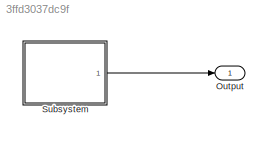
MODEL slx_3ffd3037dc9f
KIND model
CONFIG AbsTol = auto
CONFIG EnableMultiTasking = off
CONFIG FixedStep = 0.01
CONFIG MaxStep = auto
CONFIG MinStep = auto
CONFIG RelTol = 1e-3
CONFIG SampleTimeConstraint = Unconstrained
CONFIG SolverName = FixedStepAuto
CONFIG StartTime = 0.0
CONFIG StopTime = 15
BLOCK [Outport] Output
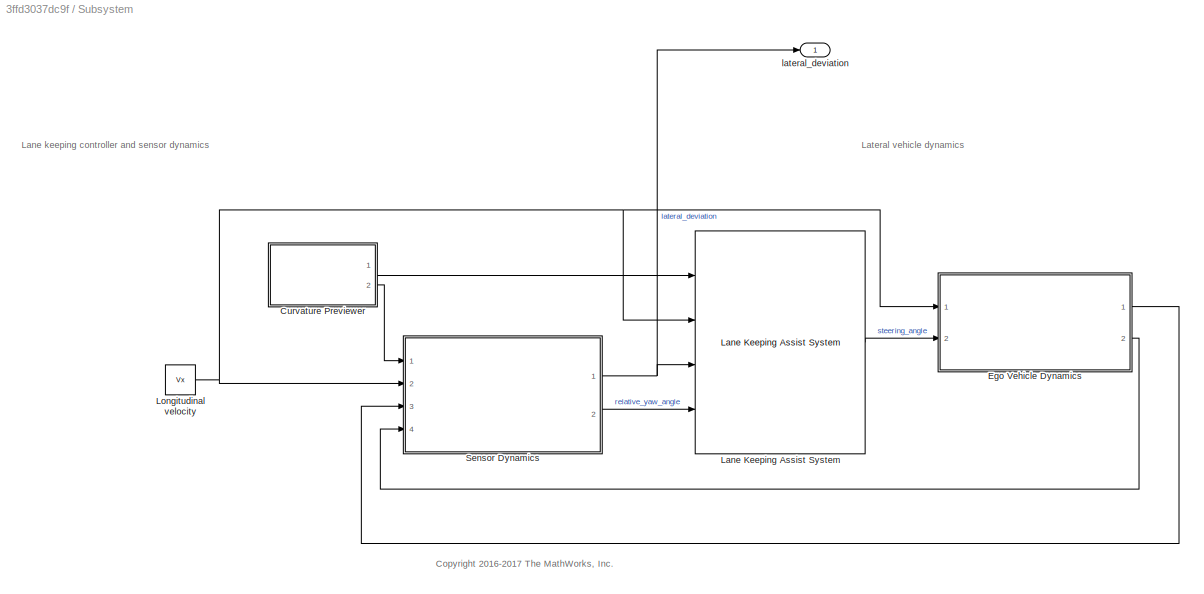
BLOCK [SubSystem] Subsystem
  Ports = [0, 1]
  RequestExecContextInheritance = off
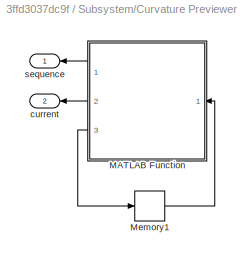
BLOCK [SubSystem] Subsystem/Curvature Previewer
  Ports = [0, 2]
  RequestExecContextInheritance = off
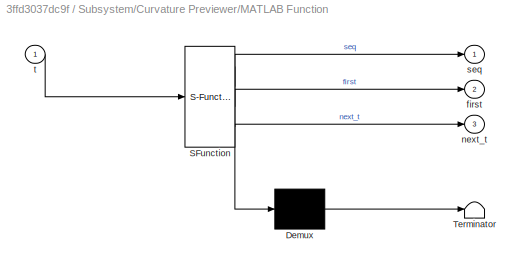
BLOCK [SubSystem] Subsystem/Curvature Previewer/MATLAB Function
  ErrorFcn = Stateflow.Translate.translate
  PermitHierarchicalResolution = ExplicitOnly
  Ports = [1, 3]
  RequestExecContextInheritance = off
  SFBlockType = MATLAB Function
  TreatAsAtomicUnit = on
BLOCK [Demux] Subsystem/Curvature Previewer/MATLAB Function/ Demux 
  Outputs = 1
  Ports = [1, 1]
BLOCK [S-Function] Subsystem/Curvature Previewer/MATLAB Function/ SFunction 
  EnableBusSupport = on
  FunctionName = sf_sfun
  Parameters = data,steps
  PortCounts = [1 4]
  Ports = [1, 4]
  SFcnIsStateOwnerBlock = off
  SFunctionDeploymentMode = off
  Tag = Stateflow S-Function 1
BLOCK [Terminator] Subsystem/Curvature Previewer/MATLAB Function/ Terminator 
BLOCK [Outport] Subsystem/Curvature Previewer/MATLAB Function/first
  Port = 2
  VectorParamsAs1DForOutWhenUnconnected = off
BLOCK [Outport] Subsystem/Curvature Previewer/MATLAB Function/next_t
  Port = 3
  VectorParamsAs1DForOutWhenUnconnected = off
BLOCK [Outport] Subsystem/Curvature Previewer/MATLAB Function/seq
  VectorParamsAs1DForOutWhenUnconnected = off
BLOCK [Inport] Subsystem/Curvature Previewer/MATLAB Function/t
BLOCK [Memory] Subsystem/Curvature Previewer/Memory1
  InheritSampleTime = on
  LinearizeAsDelay = on
BLOCK [Outport] Subsystem/Curvature Previewer/current
  Port = 2
  VectorParamsAs1DForOutWhenUnconnected = off
BLOCK [Outport] Subsystem/Curvature Previewer/sequence
  VectorParamsAs1DForOutWhenUnconnected = off
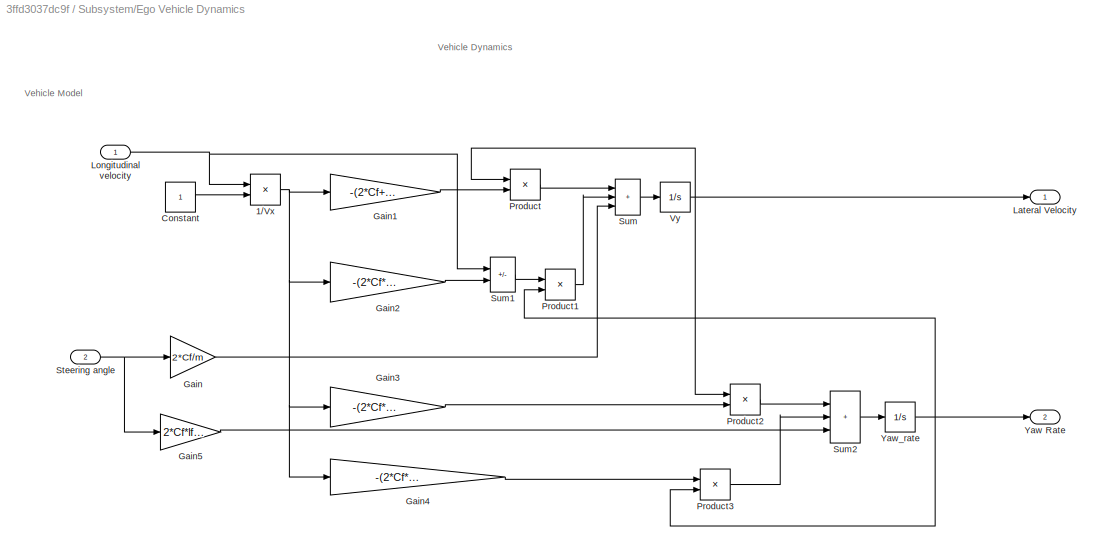
BLOCK [SubSystem] Subsystem/Ego Vehicle Dynamics
  Ports = [2, 2]
  RequestExecContextInheritance = off
BLOCK [Product] Subsystem/Ego Vehicle Dynamics/1//Vx
  Inputs = /*
  Ports = [2, 1]
BLOCK [Constant] Subsystem/Ego Vehicle Dynamics/Constant
BLOCK [Gain] Subsystem/Ego Vehicle Dynamics/Gain
  Gain = 2*Cf/m
BLOCK [Gain] Subsystem/Ego Vehicle Dynamics/Gain1
  Gain = -(2*Cf+2*Cr)/m
BLOCK [Gain] Subsystem/Ego Vehicle Dynamics/Gain2
  Gain = -(2*Cf*lf-2*Cr*lr)/m
BLOCK [Gain] Subsystem/Ego Vehicle Dynamics/Gain3
  Gain = -(2*Cf*lf-2*Cr*lr)/Iz
BLOCK [Gain] Subsystem/Ego Vehicle Dynamics/Gain4
  Gain = -(2*Cf*lf^2+2*Cr*lr^2)/Iz
BLOCK [Gain] Subsystem/Ego Vehicle Dynamics/Gain5
  Gain = 2*Cf*lf/Iz
BLOCK [Outport] Subsystem/Ego Vehicle Dynamics/Lateral Velocity
  VectorParamsAs1DForOutWhenUnconnected = off
BLOCK [Inport] Subsystem/Ego Vehicle Dynamics/Longitudinal velocity
BLOCK [Product] Subsystem/Ego Vehicle Dynamics/Product
  Ports = [2, 1]
BLOCK [Product] Subsystem/Ego Vehicle Dynamics/Product1
  Ports = [2, 1]
BLOCK [Product] Subsystem/Ego Vehicle Dynamics/Product2
  Ports = [2, 1]
BLOCK [Product] Subsystem/Ego Vehicle Dynamics/Product3
  Ports = [2, 1]
BLOCK [Inport] Subsystem/Ego Vehicle Dynamics/Steering angle
  Port = 2
BLOCK [Sum] Subsystem/Ego Vehicle Dynamics/Sum
  IconShape = rectangular
  Inputs = +++
  Ports = [3, 1]
BLOCK [Sum] Subsystem/Ego Vehicle Dynamics/Sum1
  IconShape = rectangular
  Inputs = -+
  Ports = [2, 1]
BLOCK [Sum] Subsystem/Ego Vehicle Dynamics/Sum2
  IconShape = rectangular
  Inputs = +++
  Ports = [3, 1]
BLOCK [Integrator] Subsystem/Ego Vehicle Dynamics/Vy
  Ports = [1, 1]
BLOCK [Outport] Subsystem/Ego Vehicle Dynamics/Yaw Rate
  Port = 2
  VectorParamsAs1DForOutWhenUnconnected = off
BLOCK [Integrator] Subsystem/Ego Vehicle Dynamics/Yaw_rate 
  Ports = [1, 1]
BLOCK [Reference] Subsystem/Lane Keeping Assist System  REF=mpcadaslib/Lane Keeping Assist System
  Ports = [4, 1]
  SourceBlock = mpcadaslib/Lane Keeping Assist System
  SourceProductBaseCode = MP
  SourceType = Lane Keeping Assist (LKA) System
BLOCK [Constant] Subsystem/Longitudinal velocity
  SampleTime = Ts
  Value = Vx
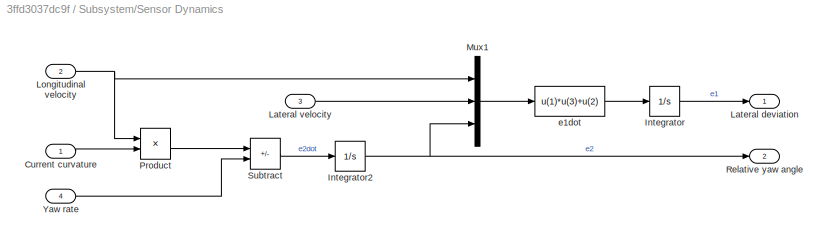
BLOCK [SubSystem] Subsystem/Sensor Dynamics
  Ports = [4, 2]
  RequestExecContextInheritance = off
BLOCK [Inport] Subsystem/Sensor Dynamics/Current curvature
BLOCK [Integrator] Subsystem/Sensor Dynamics/Integrator
  InitialCondition = e1_initial
  Ports = [1, 1]
BLOCK [Integrator] Subsystem/Sensor Dynamics/Integrator2
  InitialCondition = e2_initial
  Ports = [1, 1]
BLOCK [Outport] Subsystem/Sensor Dynamics/Lateral deviation
  VectorParamsAs1DForOutWhenUnconnected = off
BLOCK [Inport] Subsystem/Sensor Dynamics/Lateral velocity
  Port = 3
BLOCK [Inport] Subsystem/Sensor Dynamics/Longitudinal velocity
  Port = 2
BLOCK [Mux] Subsystem/Sensor Dynamics/Mux1
  DisplayOption = bar
  Inputs = [1 1 1]
  Ports = [3, 1]
BLOCK [Product] Subsystem/Sensor Dynamics/Product
  Ports = [2, 1]
BLOCK [Outport] Subsystem/Sensor Dynamics/Relative yaw angle
  Port = 2
  VectorParamsAs1DForOutWhenUnconnected = off
BLOCK [Sum] Subsystem/Sensor Dynamics/Subtract
  IconShape = rectangular
  Inputs = -+
  Ports = [2, 1]
BLOCK [Inport] Subsystem/Sensor Dynamics/Yaw rate
  Port = 4
BLOCK [Fcn] Subsystem/Sensor Dynamics/e1dot
  Expr = u(1)*u(3)+u(2)
BLOCK [Outport] Subsystem/lateral_deviation
ANNOTATION Subsystem: <copyright redacted>
ANNOTATION Subsystem: Lane keeping controller and sensor dynamics
ANNOTATION Subsystem: Lateral vehicle dynamics
ANNOTATION Subsystem/Ego Vehicle Dynamics: Vehicle Dynamics
ANNOTATION Subsystem/Ego Vehicle Dynamics: Vehicle Model
LINE Subsystem/Curvature Previewer/MATLAB Function:1 -> Subsystem/Curvature Previewer/sequence:1
LINE Subsystem/Curvature Previewer/MATLAB Function:2 -> Subsystem/Curvature Previewer/current:1
LINE Subsystem/Curvature Previewer/MATLAB Function:3 -> Subsystem/Curvature Previewer/Memory1:1
LINE Subsystem/Curvature Previewer/Memory1:1 -> Subsystem/Curvature Previewer/MATLAB Function:1
LINE Subsystem/Curvature Previewer:1 -> Subsystem/Lane Keeping Assist System:1
LINE Subsystem/Curvature Previewer:2 -> Subsystem/Sensor Dynamics:1
NET Subsystem/Ego Vehicle Dynamics/1//Vx:1 -> Subsystem/Ego Vehicle Dynamics/Gain1:1, Subsystem/Ego Vehicle Dynamics/Gain2:1, Subsystem/Ego Vehicle Dynamics/Gain3:1, Subsystem/Ego Vehicle Dynamics/Gain4:1
LINE Subsystem/Ego Vehicle Dynamics/Constant:1 -> Subsystem/Ego Vehicle Dynamics/1//Vx:2
LINE Subsystem/Ego Vehicle Dynamics/Gain1:1 -> Subsystem/Ego Vehicle Dynamics/Product:2
LINE Subsystem/Ego Vehicle Dynamics/Gain2:1 -> Subsystem/Ego Vehicle Dynamics/Sum1:2
LINE Subsystem/Ego Vehicle Dynamics/Gain3:1 -> Subsystem/Ego Vehicle Dynamics/Product2:2
LINE Subsystem/Ego Vehicle Dynamics/Gain4:1 -> Subsystem/Ego Vehicle Dynamics/Product3:1
LINE Subsystem/Ego Vehicle Dynamics/Gain5:1 -> Subsystem/Ego Vehicle Dynamics/Sum2:3
LINE Subsystem/Ego Vehicle Dynamics/Gain:1 -> Subsystem/Ego Vehicle Dynamics/Sum:3
NET Subsystem/Ego Vehicle Dynamics/Longitudinal velocity:1 -> Subsystem/Ego Vehicle Dynamics/1//Vx:1, Subsystem/Ego Vehicle Dynamics/Sum1:1
LINE Subsystem/Ego Vehicle Dynamics/Product1:1 -> Subsystem/Ego Vehicle Dynamics/Sum:2
LINE Subsystem/Ego Vehicle Dynamics/Product2:1 -> Subsystem/Ego Vehicle Dynamics/Sum2:1
LINE Subsystem/Ego Vehicle Dynamics/Product3:1 -> Subsystem/Ego Vehicle Dynamics/Sum2:2
LINE Subsystem/Ego Vehicle Dynamics/Product:1 -> Subsystem/Ego Vehicle Dynamics/Sum:1
NET Subsystem/Ego Vehicle Dynamics/Steering angle:1 -> Subsystem/Ego Vehicle Dynamics/Gain5:1, Subsystem/Ego Vehicle Dynamics/Gain:1
LINE Subsystem/Ego Vehicle Dynamics/Sum1:1 -> Subsystem/Ego Vehicle Dynamics/Product1:1
LINE Subsystem/Ego Vehicle Dynamics/Sum2:1 -> Subsystem/Ego Vehicle Dynamics/Yaw_rate :1
LINE Subsystem/Ego Vehicle Dynamics/Sum:1 -> Subsystem/Ego Vehicle Dynamics/Vy:1
NET Subsystem/Ego Vehicle Dynamics/Vy:1 -> Subsystem/Ego Vehicle Dynamics/Lateral Velocity:1, Subsystem/Ego Vehicle Dynamics/Product2:1, Subsystem/Ego Vehicle Dynamics/Product:1
NET Subsystem/Ego Vehicle Dynamics/Yaw_rate :1 -> Subsystem/Ego Vehicle Dynamics/Product1:2, Subsystem/Ego Vehicle Dynamics/Product3:2, Subsystem/Ego Vehicle Dynamics/Yaw Rate:1
LINE Subsystem/Ego Vehicle Dynamics:1 -> Subsystem/Sensor Dynamics:3
LINE Subsystem/Ego Vehicle Dynamics:2 -> Subsystem/Sensor Dynamics:4
LINE Subsystem/Lane Keeping Assist System:1 -> Subsystem/Ego Vehicle Dynamics:2
NET Subsystem/Longitudinal velocity:1 -> Subsystem/Ego Vehicle Dynamics:1, Subsystem/Lane Keeping Assist System:2, Subsystem/Sensor Dynamics:2
LINE Subsystem/Sensor Dynamics/Current curvature:1 -> Subsystem/Sensor Dynamics/Product:2
NET Subsystem/Sensor Dynamics/Integrator2:1 -> Subsystem/Sensor Dynamics/Mux1:3, Subsystem/Sensor Dynamics/Relative yaw angle:1
LINE Subsystem/Sensor Dynamics/Integrator:1 -> Subsystem/Sensor Dynamics/Lateral deviation:1
LINE Subsystem/Sensor Dynamics/Lateral velocity:1 -> Subsystem/Sensor Dynamics/Mux1:2
NET Subsystem/Sensor Dynamics/Longitudinal velocity:1 -> Subsystem/Sensor Dynamics/Mux1:1, Subsystem/Sensor Dynamics/Product:1
LINE Subsystem/Sensor Dynamics/Mux1:1 -> Subsystem/Sensor Dynamics/e1dot:1
LINE Subsystem/Sensor Dynamics/Product:1 -> Subsystem/Sensor Dynamics/Subtract:1
LINE Subsystem/Sensor Dynamics/Subtract:1 -> Subsystem/Sensor Dynamics/Integrator2:1
LINE Subsystem/Sensor Dynamics/Yaw rate:1 -> Subsystem/Sensor Dynamics/Subtract:2
LINE Subsystem/Sensor Dynamics/e1dot:1 -> Subsystem/Sensor Dynamics/Integrator:1
NET Subsystem/Sensor Dynamics:1 -> Subsystem/Lane Keeping Assist System:3, Subsystem/lateral_deviation:1
LINE Subsystem/Sensor Dynamics:2 -> Subsystem/Lane Keeping Assist System:4
LINE Subsystem:1 -> Output:1
note: NET lines group one-source signal fan-out (src -> all destinations, sorted); 1:1 wires keep LINE
CHART Subsystem/Curvature Previewer/MATLAB Function states=1 transitions=1
  STATE_LABEL 'eML_blk_kernel()'
  STATE_LABEL "SCRIPT:\nfunction [seq,first,next_t] = fcn(data,steps,t)\n%#codegen\n[seq,first,next_t] = mpcblock_preview('md',data,steps,t);"
CHART  states=0 transitions=0
